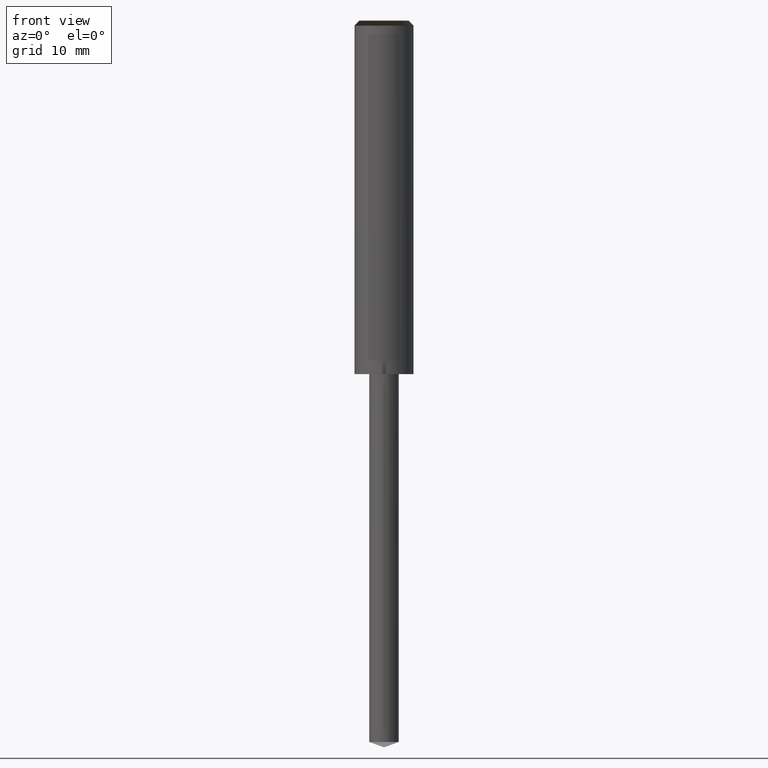
[diagram: clean part render]
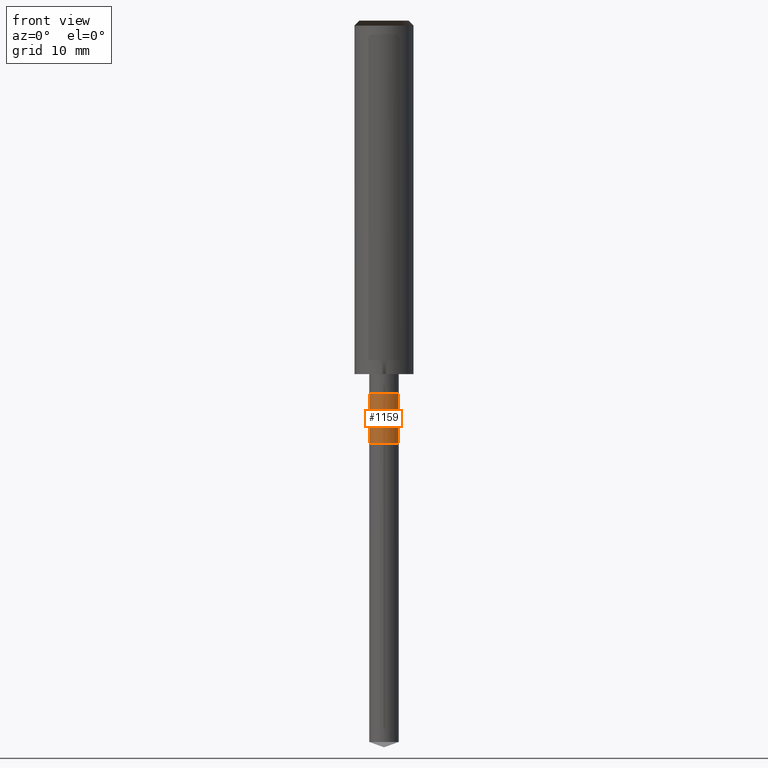
[diagram: same view with one face highlighted and labeled with its STEP entity id]
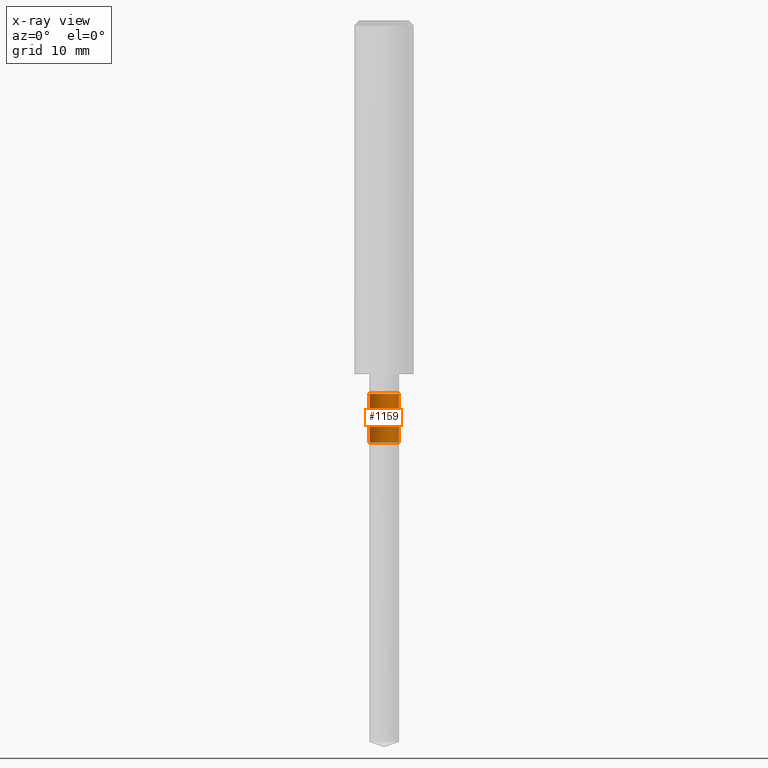
[diagram: x-ray of the same camera — body ghosted, the highlighted face saturated]
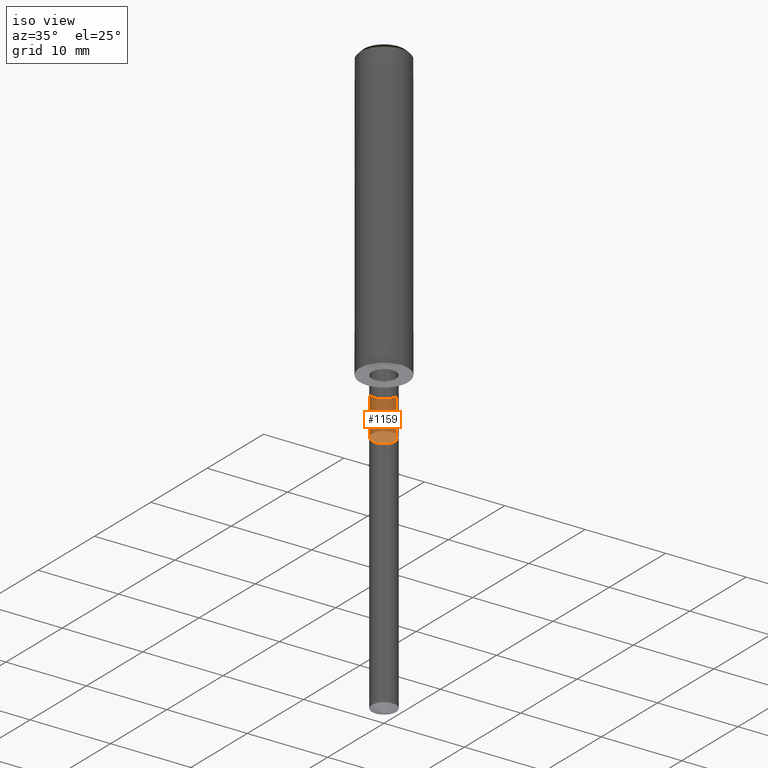
[diagram: same view with one face highlighted and labeled with its STEP entity id]
A machine part, front view. The second image highlights one B-rep face of the part: STEP entity #1159.
The next image is the same camera in x-ray: the body ghosted, the highlighted face saturated — about 0% of this face is hidden behind the body in this view.
A second angle (iso view) of the same face is appended — the face is thin or edge-on in the first view.
In plain terms, the highlighted face is a freeform B-spline surface patch.
Its self-contained STEP definition (entity closure, byte-faithful):
#826=CARTESIAN_POINT('',(1.5,0.0,-7.0));
#830=CARTESIAN_POINT('',(-1.5,0.0,-7.0));
#835=CARTESIAN_POINT('',(-1.5,-1.5,-7.0));
#836=CARTESIAN_POINT('',(0.0,-1.5,-7.0));
#837=CARTESIAN_POINT('',(1.5,-1.5,-7.0));
#838=CARTESIAN_POINT('',(1.5,0.0,-2.0));
#842=CARTESIAN_POINT('',(-1.5,0.0,-2.0));
#864=CARTESIAN_POINT('',(-1.5,-1.5,-2.0));
#865=CARTESIAN_POINT('',(0.0,-1.5,-2.0));
#866=CARTESIAN_POINT('',(1.5,-1.5,-2.0));
#1140=(
BOUNDED_SURFACE()
B_SPLINE_SURFACE(1,2,(
(#830,#835,#836,#837,#826),
(#842,#864,#865,#866,#838)
), .UNSPECIFIED.,.F.,.F.,.F.)
B_SPLINE_SURFACE_WITH_KNOTS((2,2),(3,2,3),(
0.0,1.0),(
0.0,0.5,1.0), .UNSPECIFIED.)
GEOMETRIC_REPRESENTATION_ITEM()
RATIONAL_B_SPLINE_SURFACE(((1.0,0.707106781187,1.0,0.707106781187,1.0),
(1.0,0.707106781187,1.0,0.707106781187,1.0)
))
REPRESENTATION_ITEM('')
SURFACE()
);
#1141=(
BOUNDED_CURVE()
B_SPLINE_CURVE(2,(#826,#837,#836,#835,#830),.UNSPECIFIED.,.F.,.F.)
B_SPLINE_CURVE_WITH_KNOTS((3,2,3),
(0.0,0.5,1.0),.UNSPECIFIED.)
CURVE()
GEOMETRIC_REPRESENTATION_ITEM()
RATIONAL_B_SPLINE_CURVE((1.0,0.707106781187,1.0,0.707106781187,1.0))
REPRESENTATION_ITEM('')
);
#1142=(
BOUNDED_CURVE()
B_SPLINE_CURVE(1,(#830,#842),.UNSPECIFIED.,.F.,.F.)
B_SPLINE_CURVE_WITH_KNOTS((2,2),
(0.0,1.0),.UNSPECIFIED.)
CURVE()
GEOMETRIC_REPRESENTATION_ITEM()
RATIONAL_B_SPLINE_CURVE((1.0,1.0))
REPRESENTATION_ITEM('')
);
#1143=(
BOUNDED_CURVE()
B_SPLINE_CURVE(2,(#842,#864,#865,#866,#838),.UNSPECIFIED.,.F.,.F.)
B_SPLINE_CURVE_WITH_KNOTS((3,2,3),
(0.0,0.5,1.0),.UNSPECIFIED.)
CURVE()
GEOMETRIC_REPRESENTATION_ITEM()
RATIONAL_B_SPLINE_CURVE((1.0,0.707106781187,1.0,0.707106781187,1.0))
REPRESENTATION_ITEM('')
);
#1144=(
BOUNDED_CURVE()
B_SPLINE_CURVE(1,(#838,#826),.UNSPECIFIED.,.F.,.F.)
B_SPLINE_CURVE_WITH_KNOTS((2,2),
(0.0,1.0),.UNSPECIFIED.)
CURVE()
GEOMETRIC_REPRESENTATION_ITEM()
RATIONAL_B_SPLINE_CURVE((1.0,1.0))
REPRESENTATION_ITEM('')
);
#1145=VERTEX_POINT('',#826);
#1146=VERTEX_POINT('',#830);
#1147=VERTEX_POINT('',#838);
#1148=VERTEX_POINT('',#842);
#1149=EDGE_CURVE('',#1145,#1146,#1141,.T.);
#1150=EDGE_CURVE('',#1146,#1148,#1142,.T.);
#1151=EDGE_CURVE('',#1148,#1147,#1143,.T.);
#1152=EDGE_CURVE('',#1147,#1145,#1144,.T.);
#1153=ORIENTED_EDGE('',*,*,#1149,.T.);
#1154=ORIENTED_EDGE('',*,*,#1150,.T.);
#1155=ORIENTED_EDGE('',*,*,#1151,.T.);
#1156=ORIENTED_EDGE('',*,*,#1152,.T.);
#1157=EDGE_LOOP('',(#1153,#1154,#1155,#1156));
#1158=FACE_OUTER_BOUND('',#1157,.T.);
#1159=ADVANCED_FACE('',(#1158),#1140,.T.);